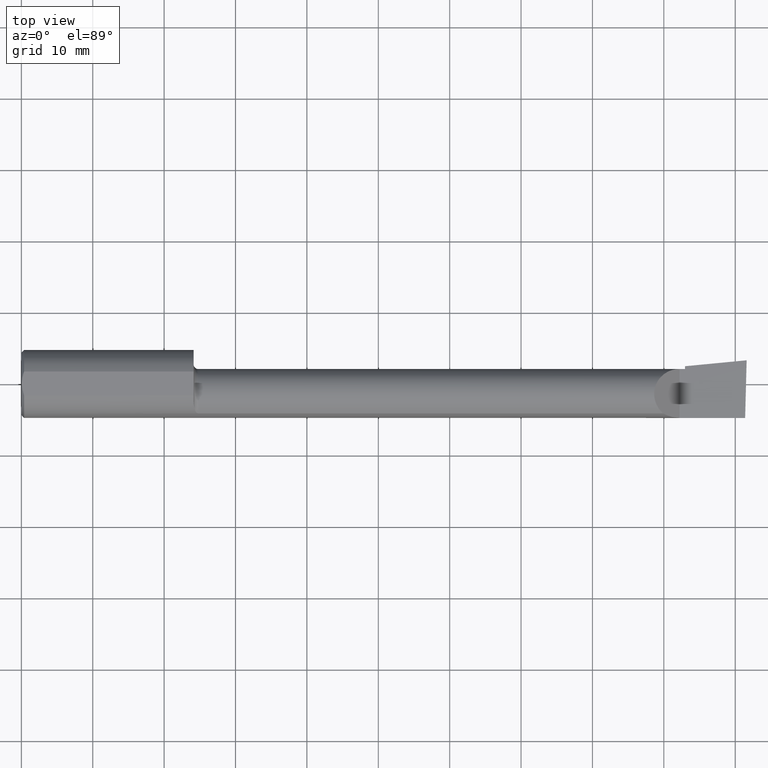
[diagram: clean part render]
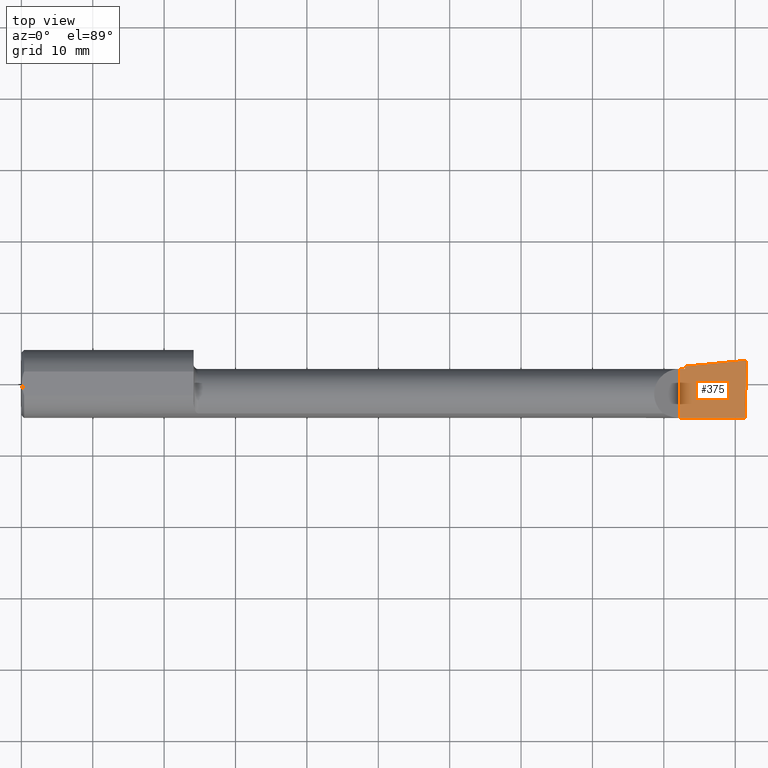
[diagram: same view with one face highlighted and labeled with its STEP entity id]
A machine part, top view. The second image highlights one B-rep face of the part: STEP entity #375.
In plain terms, the highlighted planar face has unit normal (-0, 0, -1).
Its self-contained STEP definition (entity closure, byte-faithful):
#1 = ORIENTED_EDGE ( 'NONE', *, *, #617, .F. ) ;
#3 = DIRECTION ( 'NONE',  ( -1.000000000000000000, -0.000000000000000000, -0.000000000000000000 ) ) ;
#40 = CARTESIAN_POINT ( 'NONE',  ( 3.659999999999999698, 0.08265000000000022329, 1.790477306702067193E-16 ) ) ;
#49 = VERTEX_POINT ( 'NONE', #40 ) ;
#51 = VERTEX_POINT ( 'NONE', #628 ) ;
#78 = CARTESIAN_POINT ( 'NONE',  ( 4.000000000000000000, -0.2500000000000000555, -1.707404996040164512E-16 ) ) ;
#83 = VECTOR ( 'NONE', #3, 39.37007874015748143 ) ;
#85 = EDGE_CURVE ( 'NONE', #51, #521, #332, .T. ) ;
#86 = CARTESIAN_POINT ( 'NONE',  ( 3.629999999999999893, -0.1873499999999999888, -1.383850883036508279E-16 ) ) ;
#110 = CARTESIAN_POINT ( 'NONE',  ( 1.565719721143680372E-32, -0.1873499999999999610, 1.790477306702064235E-16 ) ) ;
#130 = CARTESIAN_POINT ( 'NONE',  ( 3.990039159128060398, -0.2497391662021650749, -1.698694533788567331E-16 ) ) ;
#138 = CARTESIAN_POINT ( 'NONE',  ( -5.978051742385467392E-19, 0.08264999999999995961, 1.790477306702064235E-16 ) ) ;
#143 = EDGE_CURVE ( 'NONE', #164, #49, #435, .T. ) ;
#149 = VERTEX_POINT ( 'NONE', #86 ) ;
#157 = ORIENTED_EDGE ( 'NONE', *, *, #442, .F. ) ;
#164 = VERTEX_POINT ( 'NONE', #197 ) ;
#197 = CARTESIAN_POINT ( 'NONE',  ( 3.629999999999999893, 0.08264999999999983471, -1.383850883036508279E-16 ) ) ;
#257 = VECTOR ( 'NONE', #533, 39.37007874015748143 ) ;
#262 = LINE ( 'NONE', #110, #83 ) ;
#278 = LINE ( 'NONE', #418, #412 ) ;
#281 = DIRECTION ( 'NONE',  ( -8.744705756855574331E-17, 0.000000000000000000, -1.000000000000000000 ) ) ;
#293 = PLANE ( 'NONE',  #295 ) ;
#295 = AXIS2_PLACEMENT_3D ( 'NONE', #78, #281, #590 ) ;
#296 = DIRECTION ( 'NONE',  ( 0.9953961983671787417, 0.09584575252022461966, -8.704446866213619353E-17 ) ) ;
#330 = ORIENTED_EDGE ( 'NONE', *, *, #143, .F. ) ;
#332 = LINE ( 'NONE', #130, #538 ) ;
#345 = ORIENTED_EDGE ( 'NONE', *, *, #85, .T. ) ;
#375 = ADVANCED_FACE ( 'NONE', ( #388 ), #293, .F. ) ;
#376 = CARTESIAN_POINT ( 'NONE',  ( 3.629999999999999893, -0.2500000000000000555, -1.383850883036508279E-16 ) ) ;
#388 = FACE_OUTER_BOUND ( 'NONE', #415, .T. ) ;
#392 = CARTESIAN_POINT ( 'NONE',  ( 2.047026079080032090, -0.05740000000000000657, 4.132328855998353457E-20 ) ) ;
#402 = VERTEX_POINT ( 'NONE', #436 ) ;
#412 = VECTOR ( 'NONE', #576, 39.37007874015748143 ) ;
#414 = LINE ( 'NONE', #376, #518 ) ;
#415 = EDGE_LOOP ( 'NONE', ( #607, #345, #157, #420, #330, #1 ) ) ;
#416 = VECTOR ( 'NONE', #296, 39.37007874015748143 ) ;
#418 = CARTESIAN_POINT ( 'NONE',  ( 3.659999999999999698, -0.2500000000000000555, -1.410085000307074674E-16 ) ) ;
#420 = ORIENTED_EDGE ( 'NONE', *, *, #634, .F. ) ;
#434 = DIRECTION ( 'NONE',  ( -0.000000000000000000, 1.000000000000000000, -0.000000000000000000 ) ) ;
#435 = LINE ( 'NONE', #138, #257 ) ;
#436 = CARTESIAN_POINT ( 'NONE',  ( 3.659999999999999698, 0.09791172361284167236, 1.790479042428870021E-16 ) ) ;
#442 = EDGE_CURVE ( 'NONE', #402, #521, #443, .T. ) ;
#443 = LINE ( 'NONE', #392, #416 ) ;
#518 = VECTOR ( 'NONE', #434, 39.37007874015748143 ) ;
#521 = VERTEX_POINT ( 'NONE', #553 ) ;
#526 = EDGE_CURVE ( 'NONE', #51, #149, #262, .T. ) ;
#533 = DIRECTION ( 'NONE',  ( 1.000000000000000000, 4.268512490100411279E-18, 0.000000000000000000 ) ) ;
#536 = DIRECTION ( 'NONE',  ( 0.02617694830779359119, 0.9996573249755593693, -2.681093642708627860E-18 ) ) ;
#538 = VECTOR ( 'NONE', #536, 39.37007874015748854 ) ;
#553 = CARTESIAN_POINT ( 'NONE',  ( 3.999999999999979572, 0.1306500000000239969, 8.432873275442372511E-14 ) ) ;
#576 = DIRECTION ( 'NONE',  ( -4.268512490100411279E-18, 1.000000000000000000, 3.732688574539098315E-34 ) ) ;
#590 = DIRECTION ( 'NONE',  ( -1.000000000000000000, 0.000000000000000000, 8.744705756855574331E-17 ) ) ;
#607 = ORIENTED_EDGE ( 'NONE', *, *, #526, .F. ) ;
#617 = EDGE_CURVE ( 'NONE', #149, #164, #414, .T. ) ;
#628 = CARTESIAN_POINT ( 'NONE',  ( 3.991672876940992154, -0.1873499999999999888, -1.700367819150454743E-16 ) ) ;
#634 = EDGE_CURVE ( 'NONE', #49, #402, #278, .T. ) ;